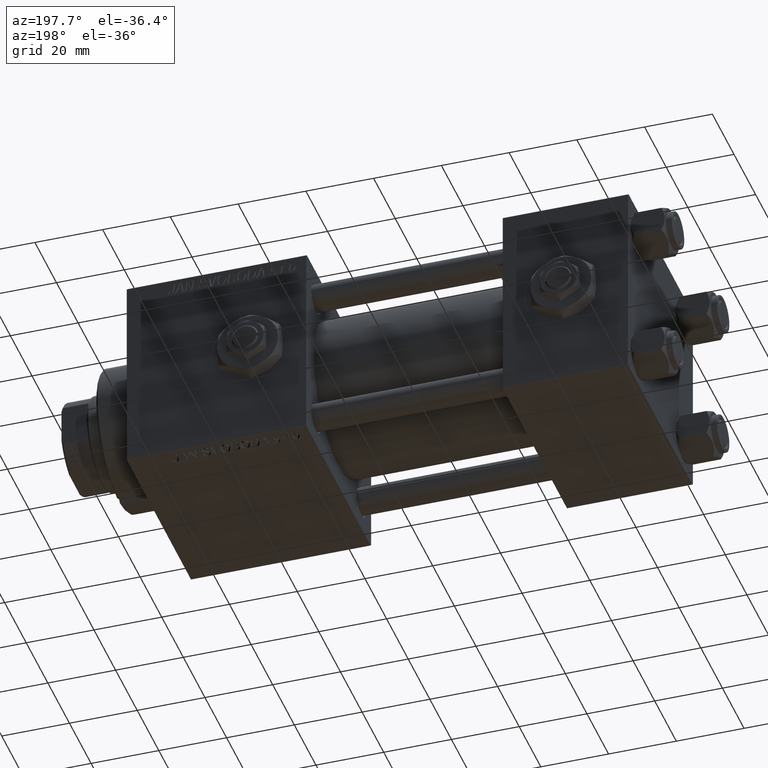
[diagram: clean part render]
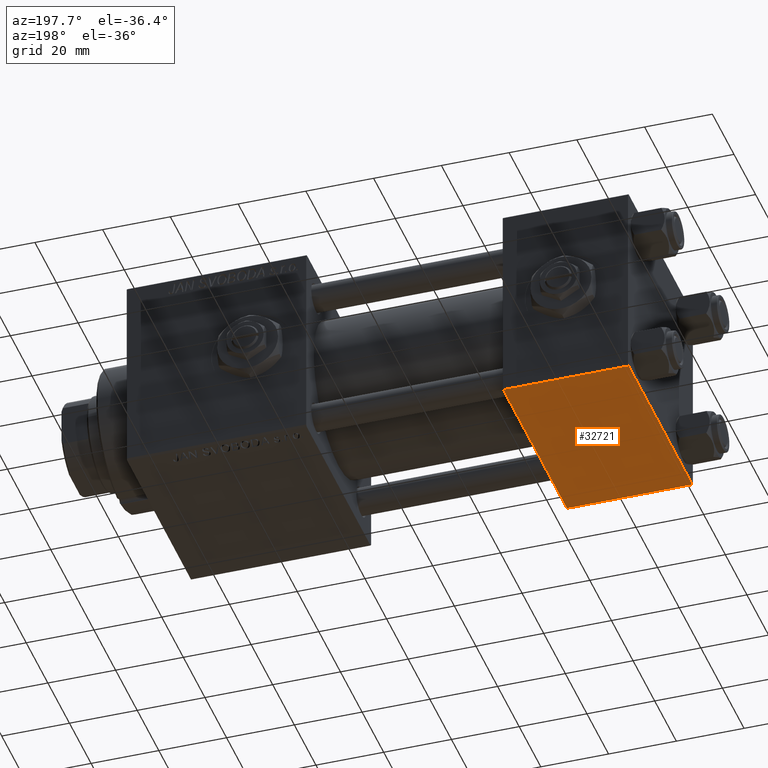
[diagram: same view with one face highlighted and labeled with its STEP entity id]
A machine part, auxiliary view. The second image highlights one B-rep face of the part: STEP entity #32721.
In plain terms, the highlighted planar face has unit normal (0, 0, -1).
Its self-contained STEP definition (entity closure, byte-faithful):
#1163 = CARTESIAN_POINT ( 'NONE',  ( 37.00000000000000000, -29.50000000000000000, -30.00000000000000711 ) ) ;
#1738 = CARTESIAN_POINT ( 'NONE',  ( 37.00000000000000000, 29.99999999999999289, -30.00000000000000000 ) ) ;
#4052 = CARTESIAN_POINT ( 'NONE',  ( 0.000000000000000000, 29.49999999999997868, -30.00000000000000000 ) ) ;
#7278 = DIRECTION ( 'NONE',  ( 0.000000000000000000, 1.000000000000000000, 1.156482317317871725E-16 ) ) ;
#7728 = LINE ( 'NONE', #24974, #45277 ) ;
#7786 = PLANE ( 'NONE',  #47914 ) ;
#14410 = CARTESIAN_POINT ( 'NONE',  ( 37.00000000000000000, 29.49999999999997868, -30.00000000000000000 ) ) ;
#15507 = CARTESIAN_POINT ( 'NONE',  ( 37.00000000000000000, 29.99999999999999289, -30.00000000000000000 ) ) ;
#15766 = FACE_OUTER_BOUND ( 'NONE', #32001, .T. ) ;
#16481 = DIRECTION ( 'NONE',  ( 0.000000000000000000, -1.000000000000000000, -1.156482317317871725E-16 ) ) ;
#16740 = LINE ( 'NONE', #45927, #52084 ) ;
#17000 = DIRECTION ( 'NONE',  ( -1.000000000000000000, 0.000000000000000000, 0.000000000000000000 ) ) ;
#19779 = VECTOR ( 'NONE', #42761, 1000.000000000000000 ) ;
#21769 = VERTEX_POINT ( 'NONE', #1163 ) ;
#24018 = VECTOR ( 'NONE', #33053, 1000.000000000000000 ) ;
#24085 = VERTEX_POINT ( 'NONE', #34170 ) ;
#24316 = EDGE_CURVE ( 'NONE', #35586, #21769, #29870, .T. ) ;
#24974 = CARTESIAN_POINT ( 'NONE',  ( 0.000000000000000000, -29.50000000000001066, -30.00000000000000711 ) ) ;
#26260 = EDGE_CURVE ( 'NONE', #21769, #24085, #7728, .T. ) ;
#27685 = EDGE_CURVE ( 'NONE', #29257, #35586, #28044, .T. ) ;
#27941 = ORIENTED_EDGE ( 'NONE', *, *, #24316, .T. ) ;
#28044 = LINE ( 'NONE', #39030, #19779 ) ;
#29257 = VERTEX_POINT ( 'NONE', #4052 ) ;
#29870 = LINE ( 'NONE', #1738, #24018 ) ;
#32001 = EDGE_LOOP ( 'NONE', ( #43923, #39000, #27941, #47025 ) ) ;
#32721 = ADVANCED_FACE ( 'NONE', ( #15766 ), #7786, .T. ) ;
#33053 = DIRECTION ( 'NONE',  ( 0.000000000000000000, -1.000000000000000000, -1.156482317317871725E-16 ) ) ;
#34170 = CARTESIAN_POINT ( 'NONE',  ( 0.000000000000000000, -29.50000000000000000, -30.00000000000000711 ) ) ;
#35586 = VERTEX_POINT ( 'NONE', #14410 ) ;
#39000 = ORIENTED_EDGE ( 'NONE', *, *, #27685, .T. ) ;
#39030 = CARTESIAN_POINT ( 'NONE',  ( 37.00000000000000000, 29.49999999999997868, -30.00000000000000000 ) ) ;
#42761 = DIRECTION ( 'NONE',  ( 1.000000000000000000, 0.000000000000000000, 0.000000000000000000 ) ) ;
#43923 = ORIENTED_EDGE ( 'NONE', *, *, #50363, .F. ) ;
#45277 = VECTOR ( 'NONE', #17000, 1000.000000000000000 ) ;
#45927 = CARTESIAN_POINT ( 'NONE',  ( 0.000000000000000000, 29.99999999999999289, -30.00000000000000000 ) ) ;
#47025 = ORIENTED_EDGE ( 'NONE', *, *, #26260, .T. ) ;
#47914 = AXIS2_PLACEMENT_3D ( 'NONE', #15507, #51609, #7278 ) ;
#50363 = EDGE_CURVE ( 'NONE', #29257, #24085, #16740, .T. ) ;
#51609 = DIRECTION ( 'NONE',  ( 0.000000000000000000, 1.156482317317871725E-16, -1.000000000000000000 ) ) ;
#52084 = VECTOR ( 'NONE', #16481, 1000.000000000000000 ) ;